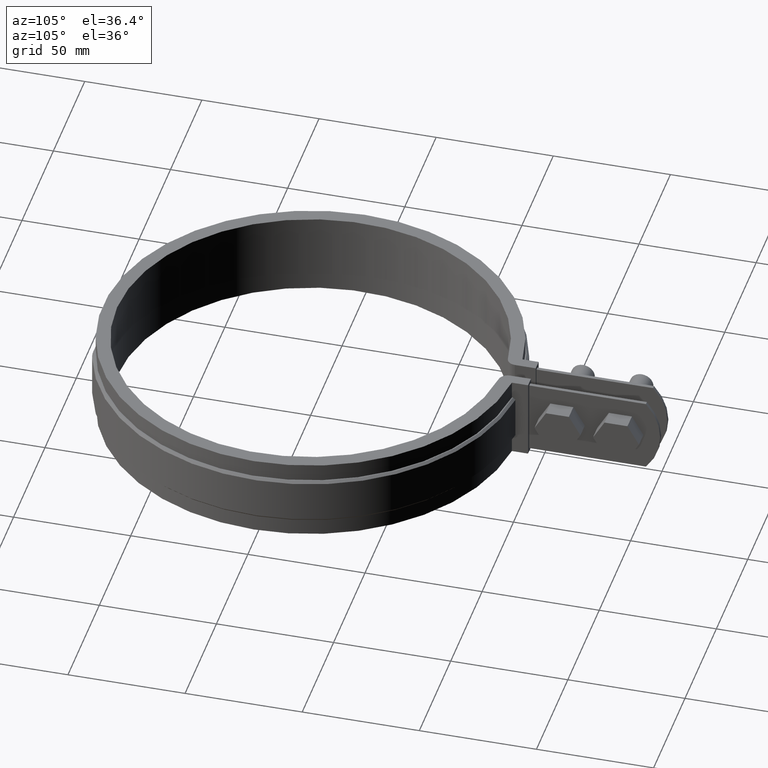
[diagram: clean part render]
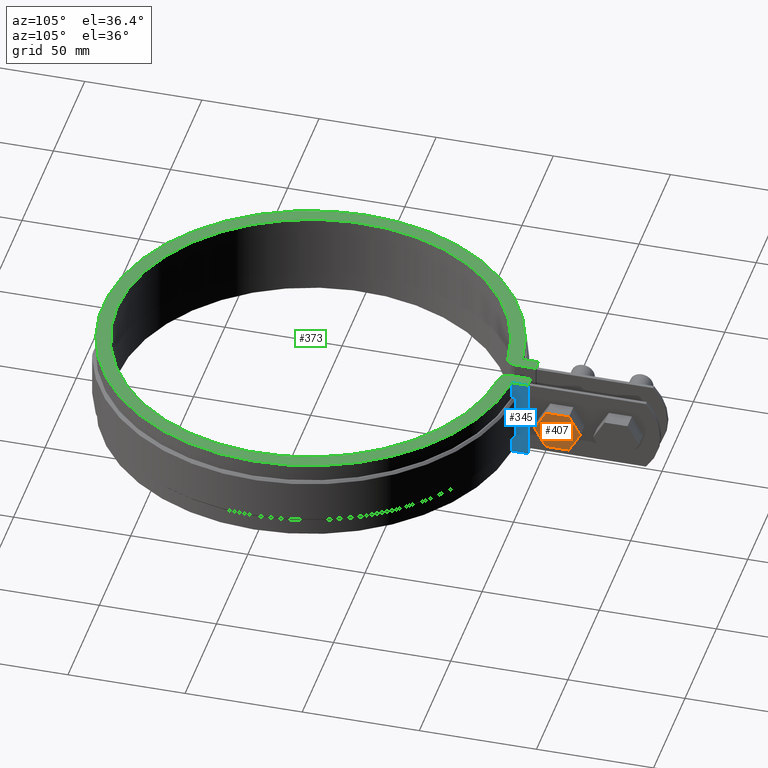
[diagram: same view with three faces highlighted in distinct colors, each labeled with its STEP entity id]
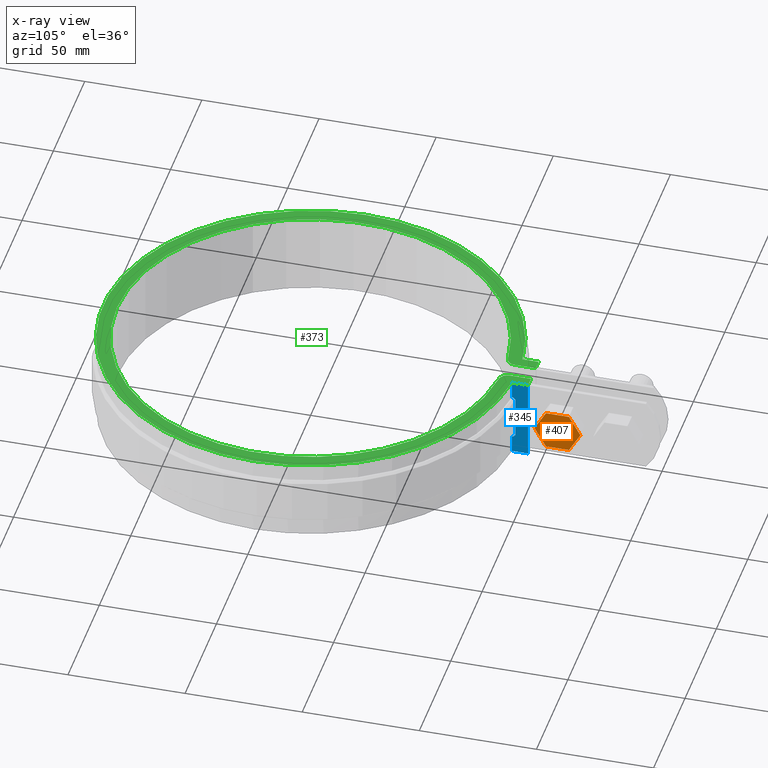
[diagram: x-ray of the same camera — body ghosted, the three highlighted faces saturated]
A machine part, auxiliary view with three faces highlighted in distinct colors.
The next image is the same camera in x-ray (body ghosted, the three faces saturated) — at least one of them is partly hidden behind the body in this view.
Their STEP definitions:

[orange] entity #407 — the highlighted planar face has unit normal (-1, 0, -0).
#407 = ADVANCED_FACE( '', ( #673 ), #674, .F. );
#673 = FACE_OUTER_BOUND( '', #1759, .T. );
#674 = PLANE( '', #1760 );
#1759 = EDGE_LOOP( '', ( #4150, #4151, #4152, #4153, #4154, #4155 ) );
#1760 = AXIS2_PLACEMENT_3D( '', #4156, #4157, #4158 );
#4150 = ORIENTED_EDGE( '', *, *, #4856, .T. );
#4151 = ORIENTED_EDGE( '', *, *, #4859, .T. );
#4152 = ORIENTED_EDGE( '', *, *, #4862, .T. );
#4153 = ORIENTED_EDGE( '', *, *, #4863, .T. );
#4154 = ORIENTED_EDGE( '', *, *, #4864, .T. );
#4155 = ORIENTED_EDGE( '', *, *, #4865, .T. );
#4156 = CARTESIAN_POINT( '', ( 13.4999999999986, 94.2805551343611, -24.4999999999991 ) );
#4157 = DIRECTION( '', ( -1.00000000000000, 6.22721247786546E-017, -6.46234853557118E-033 ) );
#4158 = DIRECTION( '', ( -5.39292420059466E-017, -0.866025403784395, 0.500000000000076 ) );
#4856 = EDGE_CURVE( '', #5410, #5408, #5411, .T. );
#4859 = EDGE_CURVE( '', #5408, #5413, #5415, .T. );
#4862 = EDGE_CURVE( '', #5413, #5420, #5421, .T. );
#4863 = EDGE_CURVE( '', #5420, #5422, #5423, .T. );
#4864 = EDGE_CURVE( '', #5422, #5424, #5425, .T. );
#4865 = EDGE_CURVE( '', #5424, #5410, #5426, .T. );
#5408 = VERTEX_POINT( '', #8186 );
#5410 = VERTEX_POINT( '', #8189 );
#5411 = LINE( '', #8190, #8191 );
#5413 = VERTEX_POINT( '', #8194 );
#5415 = LINE( '', #8197, #8198 );
#5420 = VERTEX_POINT( '', #8203 );
#5421 = LINE( '', #8204, #8205 );
#5422 = VERTEX_POINT( '', #8206 );
#5423 = LINE( '', #8207, #8208 );
#5424 = VERTEX_POINT( '', #8209 );
#5425 = LINE( '', #8210, #8211 );
#5426 = LINE( '', #8212, #8213 );
#8186 = CARTESIAN_POINT( '', ( 13.4999999999986, 113.910464286802, -24.4999999999991 ) );
#8189 = CARTESIAN_POINT( '', ( 13.4999999999986, 104.095509710582, -24.4999999999991 ) );
#8190 = CARTESIAN_POINT( '', ( 13.4999999999986, 104.095509710582, -24.4999999999991 ) );
#8191 = VECTOR( '', #8960, 999.999999999899 );
#8194 = CARTESIAN_POINT( '', ( 13.4999999999986, 118.817941574913, -16.0000000000000 ) );
#8197 = CARTESIAN_POINT( '', ( 13.4999999999986, 113.910464286802, -24.4999999999991 ) );
#8198 = VECTOR( '', #8963, 1000.00000000005 );
#8203 = CARTESIAN_POINT( '', ( 13.4999999999986, 113.910464286802, -7.50000000000086 ) );
#8204 = CARTESIAN_POINT( '', ( 13.4999999999986, 118.817941574913, -16.0000000000000 ) );
#8205 = VECTOR( '', #8970, 1000.00000000005 );
#8206 = CARTESIAN_POINT( '', ( 13.4999999999986, 104.095509710582, -7.50000000000086 ) );
#8207 = CARTESIAN_POINT( '', ( 13.4999999999986, 113.910464286802, -7.50000000000086 ) );
#8208 = VECTOR( '', #8971, 999.999999999899 );
#8209 = CARTESIAN_POINT( '', ( 13.4999999999986, 99.1880324224714, -16.0000000000000 ) );
#8210 = CARTESIAN_POINT( '', ( 13.4999999999986, 104.095509710582, -7.50000000000086 ) );
#8211 = VECTOR( '', #8972, 1000.00000000005 );
#8212 = CARTESIAN_POINT( '', ( 13.4999999999986, 99.1880324224714, -16.0000000000000 ) );
#8213 = VECTOR( '', #8973, 1000.00000000005 );
#8960 = DIRECTION( '', ( 6.22721247786546E-017, 1.00000000000000, -3.33066907387614E-016 ) );
#8963 = DIRECTION( '', ( 3.11360623893226E-017, 0.499999999999925, 0.866025403784482 ) );
#8970 = DIRECTION( '', ( -3.11360623893226E-017, -0.499999999999925, 0.866025403784482 ) );
#8971 = DIRECTION( '', ( -6.22721247786546E-017, -1.00000000000000, 3.79822709829891E-065 ) );
#8972 = DIRECTION( '', ( -3.11360623893226E-017, -0.499999999999924, -0.866025403784482 ) );
#8973 = DIRECTION( '', ( 3.11360623893226E-017, 0.499999999999924, -0.866025403784483 ) );

[blue] entity #345 — the highlighted planar face has unit normal (1, -0, 0).
#345 = ADVANCED_FACE( '', ( #544 ), #545, .T. );
#544 = FACE_OUTER_BOUND( '', #1257, .T. );
#545 = PLANE( '', #1258 );
#1257 = EDGE_LOOP( '', ( #2893, #2894, #2895, #2896, #2897, #2898, #2899, #2900, #2901, #2902 ) );
#1258 = AXIS2_PLACEMENT_3D( '', #2903, #2904, #2905 );
#2893 = ORIENTED_EDGE( '', *, *, #4696, .F. );
#2894 = ORIENTED_EDGE( '', *, *, #4697, .T. );
#2895 = ORIENTED_EDGE( '', *, *, #4698, .F. );
#2896 = ORIENTED_EDGE( '', *, *, #4699, .T. );
#2897 = ORIENTED_EDGE( '', *, *, #4700, .T. );
#2898 = ORIENTED_EDGE( '', *, *, #4701, .F. );
#2899 = ORIENTED_EDGE( '', *, *, #4702, .T. );
#2900 = ORIENTED_EDGE( '', *, *, #4689, .T. );
#2901 = ORIENTED_EDGE( '', *, *, #4703, .F. );
#2902 = ORIENTED_EDGE( '', *, *, #4704, .F. );
#2903 = CARTESIAN_POINT( '', ( 8.39999999999999, 88.2009070248147, -33.5000000000000 ) );
#2904 = DIRECTION( '', ( 1.00000000000000, -6.93889390390723E-017, 1.76604891093166E-035 ) );
#2905 = DIRECTION( '', ( -6.93889390390723E-017, -1.00000000000000, 2.54514470950076E-019 ) );
#4689 = EDGE_CURVE( '', #5133, #5130, #5134, .T. );
#4696 = EDGE_CURVE( '', #5146, #5147, #5148, .T. );
#4697 = EDGE_CURVE( '', #5146, #5149, #5150, .T. );
#4698 = EDGE_CURVE( '', #5151, #5149, #5152, .T. );
#4699 = EDGE_CURVE( '', #5151, #5153, #5154, .T. );
#4700 = EDGE_CURVE( '', #5153, #5155, #5156, .T. );
#4701 = EDGE_CURVE( '', #5157, #5155, #5158, .T. );
#4702 = EDGE_CURVE( '', #5157, #5133, #5159, .T. );
#4703 = EDGE_CURVE( '', #5160, #5130, #5161, .T. );
#4704 = EDGE_CURVE( '', #5147, #5160, #5162, .T. );
#5130 = VERTEX_POINT( '', #6804 );
#5133 = VERTEX_POINT( '', #6808 );
#5134 = LINE( '', #6809, #6810 );
#5146 = VERTEX_POINT( '', #6828 );
#5147 = VERTEX_POINT( '', #6829 );
#5148 = LINE( '', #6830, #6831 );
#5149 = VERTEX_POINT( '', #6832 );
#5150 = B_SPLINE_CURVE_WITH_KNOTS( '', 3, ( #6833, #6834, #6835, #6836 ), .UNSPECIFIED., .F., .F., ( 4, 4 ), ( 0.000000000000000, 0.00141734515066830 ), .UNSPECIFIED. );
#5151 = VERTEX_POINT( '', #6837 );
#5152 = LINE( '', #6838, #6839 );
#5153 = VERTEX_POINT( '', #6840 );
#5154 = B_SPLINE_CURVE_WITH_KNOTS( '', 3, ( #6841, #6842, #6843, #6844 ), .UNSPECIFIED., .F., .F., ( 4, 4 ), ( 5.41944938641421E-017, 0.00141734515066831 ), .UNSPECIFIED. );
#5155 = VERTEX_POINT( '', #6845 );
#5156 = LINE( '', #6846, #6847 );
#5157 = VERTEX_POINT( '', #6848 );
#5158 = LINE( '', #6849, #6850 );
#5159 = LINE( '', #6851, #6852 );
#5160 = VERTEX_POINT( '', #6853 );
#5161 = LINE( '', #6854, #6855 );
#5162 = LINE( '', #6856, #6857 );
#6804 = CARTESIAN_POINT( '', ( 8.39999999999999, 95.1000000000000, 1.50000000000000 ) );
#6808 = CARTESIAN_POINT( '', ( 8.39999999999999, 95.1000000000000, -33.5000000000000 ) );
#6809 = CARTESIAN_POINT( '', ( 8.39999999999999, 95.1000000000000, -33.5000000000000 ) );
#6810 = VECTOR( '', #8727, 1000.00000000000 );
#6828 = CARTESIAN_POINT( '', ( 8.39999999999999, 88.7031566518351, -6.00000000000000 ) );
#6829 = CARTESIAN_POINT( '', ( 8.39999999999998, 88.2009070248147, -6.00000000000000 ) );
#6830 = CARTESIAN_POINT( '', ( 8.39999999999999, 89.7075805046597, -6.00000000000000 ) );
#6831 = VECTOR( '', #8734, 1000.00000000000 );
#6832 = CARTESIAN_POINT( '', ( 8.39999999999999, 89.7075805046597, -6.99999999999999 ) );
#6833 = CARTESIAN_POINT( '', ( 8.39999999999999, 88.7031566518351, -6.00000000000000 ) );
#6834 = CARTESIAN_POINT( '', ( 8.39999999999999, 89.0379728961723, -6.33332500304170 ) );
#6835 = CARTESIAN_POINT( '', ( 8.39999999999999, 89.3727807548670, -6.66665842943985 ) );
#6836 = CARTESIAN_POINT( '', ( 8.39999999999999, 89.7075805046597, -7.00000000000000 ) );
#6837 = CARTESIAN_POINT( '', ( 8.39999999999999, 89.7075805046597, -25.0000000000000 ) );
#6838 = CARTESIAN_POINT( '', ( 8.39999999999996, 89.7075805046598, -26.0000000000000 ) );
#6839 = VECTOR( '', #8735, 1000.00000000000 );
#6840 = CARTESIAN_POINT( '', ( 8.39999999999999, 88.7031566518351, -26.0000000000000 ) );
#6841 = CARTESIAN_POINT( '', ( 8.39999999999996, 89.7075805046597, -25.0000000000000 ) );
#6842 = CARTESIAN_POINT( '', ( 8.39999999999996, 89.3727807548670, -25.3333415705602 ) );
#6843 = CARTESIAN_POINT( '', ( 8.39999999999999, 89.0379728961723, -25.6666749969583 ) );
#6844 = CARTESIAN_POINT( '', ( 8.39999999999999, 88.7031566518351, -26.0000000000000 ) );
#6845 = CARTESIAN_POINT( '', ( 8.39999999999998, 88.2009070248147, -26.0000000000000 ) );
#6846 = CARTESIAN_POINT( '', ( 8.39999999999999, 89.7075805046597, -26.0000000000000 ) );
#6847 = VECTOR( '', #8736, 1000.00000000000 );
#6848 = CARTESIAN_POINT( '', ( 8.39999999999998, 88.2009070248147, -33.5000000000000 ) );
#6849 = CARTESIAN_POINT( '', ( 8.39999999999998, 88.2009070248147, -33.5000000000000 ) );
#6850 = VECTOR( '', #8737, 1000.00000000000 );
#6851 = CARTESIAN_POINT( '', ( 8.39999999999999, 88.2009070248147, -33.5000000000000 ) );
#6852 = VECTOR( '', #8738, 1000.00000000000 );
#6853 = CARTESIAN_POINT( '', ( 8.39999999999998, 88.2009070248147, 1.50000000000000 ) );
#6854 = CARTESIAN_POINT( '', ( 8.39999999999999, 88.2009070248147, 1.50000000000000 ) );
#6855 = VECTOR( '', #8739, 1000.00000000000 );
#6856 = CARTESIAN_POINT( '', ( 8.39999999999998, 88.2009070248147, -33.5000000000000 ) );
#6857 = VECTOR( '', #8740, 1000.00000000000 );
#8727 = DIRECTION( '', ( 0.000000000000000, 2.54514470950076E-019, 1.00000000000000 ) );
#8734 = DIRECTION( '', ( 0.000000000000000, -1.00000000000000, 0.000000000000000 ) );
#8735 = DIRECTION( '', ( 0.000000000000000, 0.000000000000000, 1.00000000000000 ) );
#8736 = DIRECTION( '', ( 0.000000000000000, -1.00000000000000, 0.000000000000000 ) );
#8737 = DIRECTION( '', ( 0.000000000000000, 2.54514470950076E-019, 1.00000000000000 ) );
#8738 = DIRECTION( '', ( 6.93889390390723E-017, 1.00000000000000, 0.000000000000000 ) );
#8739 = DIRECTION( '', ( 6.93889390390723E-017, 1.00000000000000, 0.000000000000000 ) );
#8740 = DIRECTION( '', ( 0.000000000000000, 2.54514470950076E-019, 1.00000000000000 ) );

[green] entity #373 — the highlighted planar face has unit normal (0, 0, 1).
#373 = ADVANCED_FACE( '', ( #602 ), #603, .T. );
#602 = FACE_OUTER_BOUND( '', #1688, .T. );
#603 = PLANE( '', #1689 );
#1688 = EDGE_LOOP( '', ( #3902, #3903, #3904, #3905, #3906, #3907, #3908, #3909, #3910, #3911 ) );
#1689 = AXIS2_PLACEMENT_3D( '', #3912, #3913, #3914 );
#3902 = ORIENTED_EDGE( '', *, *, #4703, .T. );
#3903 = ORIENTED_EDGE( '', *, *, #4688, .T. );
#3904 = ORIENTED_EDGE( '', *, *, #4775, .T. );
#3905 = ORIENTED_EDGE( '', *, *, #4778, .T. );
#3906 = ORIENTED_EDGE( '', *, *, #4781, .T. );
#3907 = ORIENTED_EDGE( '', *, *, #4784, .T. );
#3908 = ORIENTED_EDGE( '', *, *, #4787, .T. );
#3909 = ORIENTED_EDGE( '', *, *, #4770, .T. );
#3910 = ORIENTED_EDGE( '', *, *, #4795, .T. );
#3911 = ORIENTED_EDGE( '', *, *, #4799, .T. );
#3912 = CARTESIAN_POINT( '', ( 7.80000000000001, 86.2480144698995, 1.50000000000000 ) );
#3913 = DIRECTION( '', ( 0.000000000000000, 2.54514470950076E-019, 1.00000000000000 ) );
#3914 = DIRECTION( '', ( 0.000000000000000, 1.00000000000000, -2.54514470950076E-019 ) );
#4688 = EDGE_CURVE( '', #5130, #5131, #5132, .T. );
#4703 = EDGE_CURVE( '', #5160, #5130, #5161, .T. );
#4770 = EDGE_CURVE( '', #5272, #5273, #5274, .T. );
#4775 = EDGE_CURVE( '', #5131, #5281, #5282, .T. );
#4778 = EDGE_CURVE( '', #5281, #5286, #5287, .T. );
#4781 = EDGE_CURVE( '', #5286, #5291, #5292, .T. );
#4784 = EDGE_CURVE( '', #5291, #5296, #5297, .T. );
#4787 = EDGE_CURVE( '', #5296, #5272, #5301, .T. );
#4795 = EDGE_CURVE( '', #5273, #5314, #5316, .T. );
#4799 = EDGE_CURVE( '', #5314, #5160, #5322, .T. );
#5130 = VERTEX_POINT( '', #6804 );
#5131 = VERTEX_POINT( '', #6805 );
#5132 = LINE( '', #6806, #6807 );
#5160 = VERTEX_POINT( '', #6853 );
#5161 = LINE( '', #6854, #6855 );
#5272 = VERTEX_POINT( '', #7994 );
#5273 = VERTEX_POINT( '', #7995 );
#5274 = LINE( '', #7996, #7997 );
#5281 = VERTEX_POINT( '', #8008 );
#5282 = LINE( '', #8009, #8010 );
#5286 = VERTEX_POINT( '', #8016 );
#5287 = CIRCLE( '', #8017, 3.99999999999999 );
#5291 = VERTEX_POINT( '', #8022 );
#5292 = CIRCLE( '', #8023, 82.6000000000007 );
#5296 = VERTEX_POINT( '', #8028 );
#5297 = CIRCLE( '', #8029, 4.00000000000000 );
#5301 = LINE( '', #8034, #8035 );
#5314 = VERTEX_POINT( '', #8058 );
#5316 = LINE( '', #8061, #8062 );
#5322 = CIRCLE( '', #8070, 88.6000000000001 );
#6804 = CARTESIAN_POINT( '', ( 8.39999999999999, 95.1000000000000, 1.50000000000000 ) );
#6805 = CARTESIAN_POINT( '', ( 3.80000000000002, 95.1000000000000, 1.50000000000000 ) );
#6806 = CARTESIAN_POINT( '', ( 8.39999999999999, 95.1000000000000, 1.50000000000000 ) );
#6807 = VECTOR( '', #8726, 1000.00000000000 );
#6853 = CARTESIAN_POINT( '', ( 8.39999999999998, 88.2009070248147, 1.50000000000000 ) );
#6854 = CARTESIAN_POINT( '', ( 8.39999999999999, 88.2009070248147, 1.50000000000000 ) );
#6855 = VECTOR( '', #8739, 1000.00000000000 );
#7994 = CARTESIAN_POINT( '', ( -3.79999999999998, 95.1000000000000, 1.50000000000000 ) );
#7995 = CARTESIAN_POINT( '', ( -8.40000000000000, 95.1000000000000, 1.50000000000000 ) );
#7996 = CARTESIAN_POINT( '', ( -3.80000000000000, 95.1000000000000, 1.50000000000000 ) );
#7997 = VECTOR( '', #8810, 1000.00000000000 );
#8008 = CARTESIAN_POINT( '', ( 3.80000000000002, 86.2480144698995, 1.50000000000000 ) );
#8009 = CARTESIAN_POINT( '', ( 3.80000000000002, 95.1000000000000, 1.50000000000000 ) );
#8010 = VECTOR( '', #8815, 1000.00000000000 );
#8016 = CARTESIAN_POINT( '', ( 7.43972286374133, 82.2642724620520, 1.50000000000000 ) );
#8017 = AXIS2_PLACEMENT_3D( '', #8818, #8819, #8820 );
#8022 = CARTESIAN_POINT( '', ( -7.43972286374120, 82.2642724620520, 1.50000000000000 ) );
#8023 = AXIS2_PLACEMENT_3D( '', #8825, #8826, #8827 );
#8028 = CARTESIAN_POINT( '', ( -3.79999999999998, 86.2480144698995, 1.50000000000000 ) );
#8029 = AXIS2_PLACEMENT_3D( '', #8832, #8833, #8834 );
#8034 = CARTESIAN_POINT( '', ( -3.79999999999998, 86.2480144698995, 1.50000000000000 ) );
#8035 = VECTOR( '', #8839, 1000.00000000000 );
#8058 = CARTESIAN_POINT( '', ( -8.40000000000000, 88.2009070248147, 1.50000000000000 ) );
#8061 = CARTESIAN_POINT( '', ( -8.40000000000000, 95.1000000000000, 1.50000000000000 ) );
#8062 = VECTOR( '', #8845, 1000.00000000000 );
#8070 = AXIS2_PLACEMENT_3D( '', #8851, #8852, #8853 );
#8726 = DIRECTION( '', ( -1.00000000000000, 0.000000000000000, 0.000000000000000 ) );
#8739 = DIRECTION( '', ( 6.93889390390723E-017, 1.00000000000000, 0.000000000000000 ) );
#8810 = DIRECTION( '', ( -1.00000000000000, 0.000000000000000, 0.000000000000000 ) );
#8815 = DIRECTION( '', ( -6.10365667473321E-017, -1.00000000000000, 0.000000000000000 ) );
#8818 = CARTESIAN_POINT( '', ( 7.80000000000001, 86.2480144698995, 1.50000000000000 ) );
#8819 = DIRECTION( '', ( 0.000000000000000, 2.54514470950076E-019, 1.00000000000000 ) );
#8820 = DIRECTION( '', ( -1.00000000000000, 0.000000000000000, 0.000000000000000 ) );
#8825 = CARTESIAN_POINT( '', ( -6.24500451351651E-014, -6.24500451351651E-013, 1.50000000000000 ) );
#8826 = DIRECTION( '', ( 0.000000000000000, -2.54514470950076E-019, -1.00000000000000 ) );
#8827 = DIRECTION( '', ( 1.00000000000000, 0.000000000000000, 0.000000000000000 ) );
#8832 = CARTESIAN_POINT( '', ( -7.79999999999998, 86.2480144698995, 1.50000000000000 ) );
#8833 = DIRECTION( '', ( 0.000000000000000, 2.54514470950076E-019, 1.00000000000000 ) );
#8834 = DIRECTION( '', ( 1.00000000000000, 0.000000000000000, 0.000000000000000 ) );
#8839 = DIRECTION( '', ( 6.26427921880514E-017, 1.00000000000000, -4.81482486096809E-035 ) );
#8845 = DIRECTION( '', ( -6.93889390390723E-017, -1.00000000000000, 0.000000000000000 ) );
#8851 = CARTESIAN_POINT( '', ( 6.93889390390723E-015, -9.71445146547012E-014, 1.50000000000000 ) );
#8852 = DIRECTION( '', ( 0.000000000000000, 2.54514470950076E-019, 1.00000000000000 ) );
#8853 = DIRECTION( '', ( 1.00000000000000, 0.000000000000000, 0.000000000000000 ) );